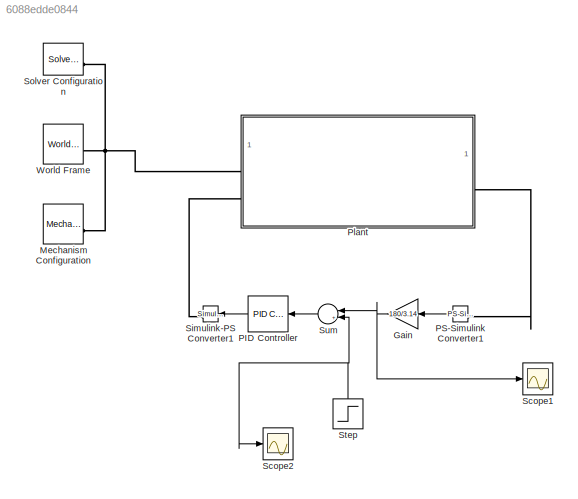
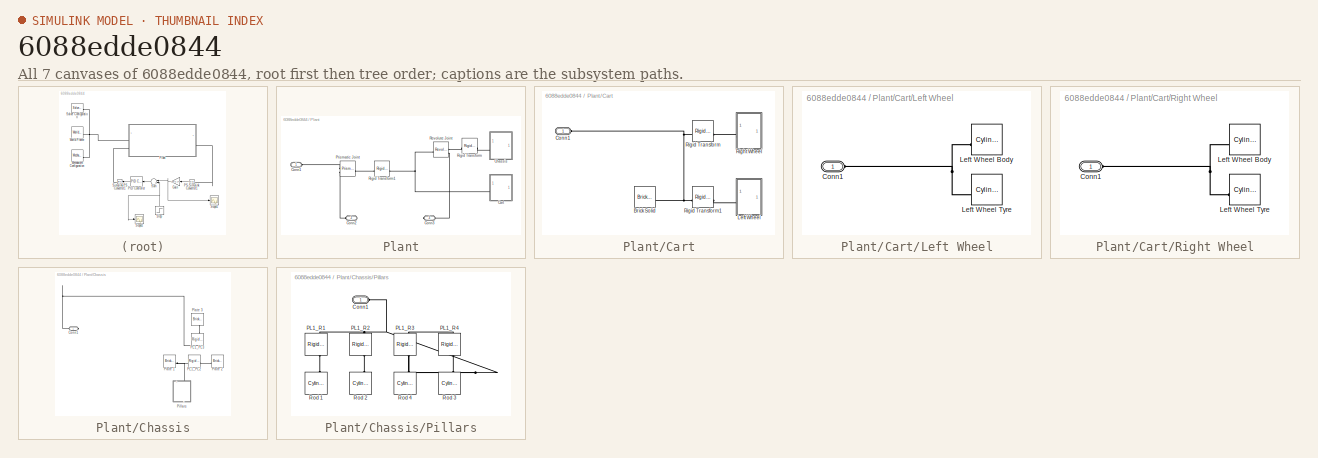
[diagram: thumbnail index - all 7 canvases of the model, root first then tree order]
MODEL slx_6088edde0844
KIND model
CONFIG AbsTol = 1e-3
CONFIG EnableMultiTasking = on
CONFIG FixedStep = auto
CONFIG MaxStep = auto
CONFIG MinStep = auto
CONFIG RelTol = 1e-3
CONFIG SampleTimeConstraint = Unconstrained
CONFIG SolverName = VariableStepAuto
CONFIG StartTime = 0.0
CONFIG StopTime = 10.0
BLOCK [Gain] Gain
  Gain = 180/3.14
  NameLocation = top
BLOCK [Reference] Mechanism Configuration  REF=sm_lib/Utilities/Mechanism
Configuration
  SourceBlock = sm_lib/Utilities/Mechanism\nConfiguration
  SourceType = Mechanism\nConfiguration
BLOCK [Reference] PID Controller  REF=slpidlib/PID Controller
  LibrarySourceBlock = simulink/Continuous/PID Controller
  NameLocation = top
  SourceBlock = slpidlib/PID Controller
  SourceType = PID 1dof
BLOCK [Reference] PS-Simulink Converter1  REF=nesl_utility/PS-Simulink
Converter
  NameLocation = top
  SourceBlock = nesl_utility/PS-Simulink\nConverter
  SourceType = PS-Simulink\nConverter
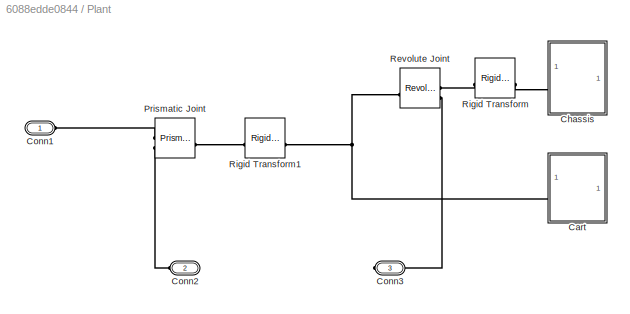
BLOCK [SubSystem] Plant
BLOCK [SubSystem] Plant/Cart
BLOCK [Reference] Plant/Cart/Brick Solid  REF=sm_lib/Body Elements/Brick Solid
  SourceBlock = sm_lib/Body Elements/Brick Solid
  SourceType = Brick Solid
BLOCK [PMIOPort] Plant/Cart/Conn1
  Side = Left
BLOCK [SubSystem] Plant/Cart/Left Wheel
BLOCK [PMIOPort] Plant/Cart/Left Wheel/Conn1
  Side = Left
BLOCK [Reference] Plant/Cart/Left Wheel/Left Wheel Body  REF=sm_lib/Body Elements/Cylindrical Solid
  NameLocation = top
  SourceBlock = sm_lib/Body Elements/Cylindrical Solid
  SourceType = Cylindrical Solid
BLOCK [Reference] Plant/Cart/Left Wheel/Left Wheel Tyre  REF=sm_lib/Body Elements/Cylindrical Solid
  NameLocation = top
  SourceBlock = sm_lib/Body Elements/Cylindrical Solid
  SourceType = Cylindrical Solid
BLOCK [SubSystem] Plant/Cart/Right Wheel
BLOCK [PMIOPort] Plant/Cart/Right Wheel/Conn1
  Side = Left
BLOCK [Reference] Plant/Cart/Right Wheel/Left Wheel Body  REF=sm_lib/Body Elements/Cylindrical Solid
  NameLocation = top
  SourceBlock = sm_lib/Body Elements/Cylindrical Solid
  SourceType = Cylindrical Solid
BLOCK [Reference] Plant/Cart/Right Wheel/Left Wheel Tyre  REF=sm_lib/Body Elements/Cylindrical Solid
  NameLocation = top
  SourceBlock = sm_lib/Body Elements/Cylindrical Solid
  SourceType = Cylindrical Solid
BLOCK [Reference] Plant/Cart/Rigid Transform  REF=sm_lib/Frames and
Transforms/Rigid
Transform
  SourceBlock = sm_lib/Frames and\nTransforms/Rigid\nTransform
  SourceType = Rigid\nTransform
BLOCK [Reference] Plant/Cart/Rigid Transform1  REF=sm_lib/Frames and
Transforms/Rigid
Transform
  SourceBlock = sm_lib/Frames and\nTransforms/Rigid\nTransform
  SourceType = Rigid\nTransform
BLOCK [SubSystem] Plant/Chassis
BLOCK [PMIOPort] Plant/Chassis/Conn1
  Side = Left
BLOCK [Reference] Plant/Chassis/PL1_PL2  REF=sm_lib/Frames and
Transforms/Rigid
Transform
  SourceBlock = sm_lib/Frames and\nTransforms/Rigid\nTransform
  SourceType = Rigid\nTransform
BLOCK [Reference] Plant/Chassis/PL1_PL3  REF=sm_lib/Frames and
Transforms/Rigid
Transform
  NameLocation = right
  SourceBlock = sm_lib/Frames and\nTransforms/Rigid\nTransform
  SourceType = Rigid\nTransform
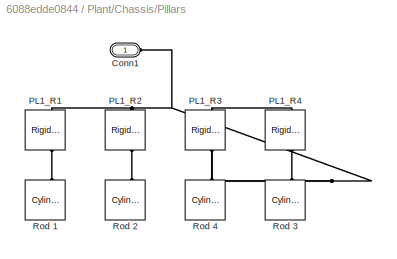
BLOCK [SubSystem] Plant/Chassis/Pillars
  NameLocation = left
BLOCK [PMIOPort] Plant/Chassis/Pillars/Conn1
  Side = Left
BLOCK [Reference] Plant/Chassis/Pillars/PL1_R1  REF=sm_lib/Frames and
Transforms/Rigid
Transform
  NameLocation = left
  SourceBlock = sm_lib/Frames and\nTransforms/Rigid\nTransform
  SourceType = Rigid\nTransform
BLOCK [Reference] Plant/Chassis/Pillars/PL1_R2  REF=sm_lib/Frames and
Transforms/Rigid
Transform
  NameLocation = left
  SourceBlock = sm_lib/Frames and\nTransforms/Rigid\nTransform
  SourceType = Rigid\nTransform
BLOCK [Reference] Plant/Chassis/Pillars/PL1_R3  REF=sm_lib/Frames and
Transforms/Rigid
Transform
  NameLocation = left
  SourceBlock = sm_lib/Frames and\nTransforms/Rigid\nTransform
  SourceType = Rigid\nTransform
BLOCK [Reference] Plant/Chassis/Pillars/PL1_R4  REF=sm_lib/Frames and
Transforms/Rigid
Transform
  NameLocation = left
  SourceBlock = sm_lib/Frames and\nTransforms/Rigid\nTransform
  SourceType = Rigid\nTransform
BLOCK [Reference] Plant/Chassis/Pillars/Rod 1  REF=sm_lib/Body Elements/Cylindrical Solid
  NameLocation = right
  SourceBlock = sm_lib/Body Elements/Cylindrical Solid
  SourceType = Cylindrical Solid
BLOCK [Reference] Plant/Chassis/Pillars/Rod 2  REF=sm_lib/Body Elements/Cylindrical Solid
  NameLocation = right
  SourceBlock = sm_lib/Body Elements/Cylindrical Solid
  SourceType = Cylindrical Solid
BLOCK [Reference] Plant/Chassis/Pillars/Rod 3  REF=sm_lib/Body Elements/Cylindrical Solid
  NameLocation = right
  SourceBlock = sm_lib/Body Elements/Cylindrical Solid
  SourceType = Cylindrical Solid
BLOCK [Reference] Plant/Chassis/Pillars/Rod 4  REF=sm_lib/Body Elements/Cylindrical Solid
  NameLocation = right
  SourceBlock = sm_lib/Body Elements/Cylindrical Solid
  SourceType = Cylindrical Solid
BLOCK [Reference] Plant/Chassis/Plate 1  REF=sm_lib/Body Elements/Brick Solid
  NameLocation = left
  SourceBlock = sm_lib/Body Elements/Brick Solid
  SourceType = Brick Solid
BLOCK [Reference] Plant/Chassis/Plate 2   REF=sm_lib/Body Elements/Brick Solid
  NameLocation = right
  SourceBlock = sm_lib/Body Elements/Brick Solid
  SourceType = Brick Solid
BLOCK [Reference] Plant/Chassis/Plate 3  REF=sm_lib/Body Elements/Brick Solid
  NameLocation = top
  SourceBlock = sm_lib/Body Elements/Brick Solid
  SourceType = Brick Solid
BLOCK [PMIOPort] Plant/Conn1
  Side = Left
BLOCK [PMIOPort] Plant/Conn2
  Port = 2
  Side = Left
BLOCK [PMIOPort] Plant/Conn3
  Port = 3
  Side = Right
BLOCK [Reference] Plant/Prismatic Joint  REF=sm_lib/Joints/Prismatic
Joint
  SourceBlock = sm_lib/Joints/Prismatic\nJoint
  SourceType = Prismatic\nJoint
BLOCK [Reference] Plant/Revolute Joint  REF=sm_lib/Joints/Revolute Joint
  SourceBlock = sm_lib/Joints/Revolute Joint
  SourceType = Revolute Joint
BLOCK [Reference] Plant/Rigid Transform  REF=sm_lib/Frames and
Transforms/Rigid
Transform
  SourceBlock = sm_lib/Frames and\nTransforms/Rigid\nTransform
  SourceType = Rigid\nTransform
BLOCK [Reference] Plant/Rigid Transform1  REF=sm_lib/Frames and
Transforms/Rigid
Transform
  SourceBlock = sm_lib/Frames and\nTransforms/Rigid\nTransform
  SourceType = Rigid\nTransform
BLOCK [Scope] Scope1
  Floating = off
  NumInputPorts = 1
  ScopeSpecificationString = Simulink.scopes.TimeScopeBlockCfg('CurrentConfiguration', extmgr.ConfigurationSet(extmgr.Configuration('Core','General UI',true),extmgr.Configuration('Core','Source UI',true),extmgr.Configuration('Sources','WiredSimulink',true,'DataLoggingVariableName','ScopeData1'),extmgr.Configuration('Visuals','Time Domain',true,'SerializedDisplays',{struct('MinYLimReal','-10.37189','MaxYLimReal','13.23926','YL...<+1487ch>
BLOCK [Scope] Scope2
  Floating = off
  NumInputPorts = 1
  ScopeSpecificationString = Simulink.scopes.TimeScopeBlockCfg('CurrentConfiguration', extmgr.ConfigurationSet(extmgr.Configuration('Core','General UI',true),extmgr.Configuration('Core','Source UI',true),extmgr.Configuration('Sources','WiredSimulink',true,'DataLoggingVariableName','ScopeData2'),extmgr.Configuration('Visuals','Time Domain',true,'SerializedDisplays',{struct('MinYLimReal','-1.25','MaxYLimReal','11.25','YLabelRea...<+1438ch>
BLOCK [Reference] Simulink-PS Converter1  REF=nesl_utility/Simulink-PS
Converter
  NameLocation = top
  SourceBlock = nesl_utility/Simulink-PS\nConverter
  SourceType = Simulink-PS\nConverter
BLOCK [Reference] Solver Configuration  REF=nesl_utility/Solver
Configuration
  SourceBlock = nesl_utility/Solver\nConfiguration
  SourceType = Solver\nConfiguration
BLOCK [Step] Step
  After = 0
  Before = 10
  NameLocation = right
  SampleTime = 0
  Time = 0.01
BLOCK [Sum] Sum
  Inputs = |+-|
  NameLocation = top
BLOCK [Reference] World Frame  REF=sm_lib/Frames and
Transforms/World Frame
  SourceBlock = sm_lib/Frames and\nTransforms/World Frame
  SourceType = World Frame
NET Gain:1 -> Scope1:1, Sum:1
LINE PID Controller:1 -> Simulink-PS Converter1:1
LINE PS-Simulink Converter1:1 -> Gain:1
NET Step:1 -> Scope2:1, Sum:2
LINE Sum:1 -> PID Controller:1
PNET net1: Mechanism Configuration:RConn1 -- Plant:LConn1 -- Solver Configuration:RConn1 -- World Frame:RConn1
PLINE PS-Simulink Converter1:LConn1 -- Plant:RConn1
PNET net2: Plant/Cart/Brick Solid:RConn1 -- Plant/Cart/Conn1:RConn1 -- Plant/Cart/Rigid Transform1:LConn1 -- Plant/Cart/Rigid Transform:LConn1
PNET net3: Plant/Cart/Left Wheel/Conn1:RConn1 -- Plant/Cart/Left Wheel/Left Wheel Body:RConn1 -- Plant/Cart/Left Wheel/Left Wheel Tyre:RConn1
PLINE Plant/Cart/Left Wheel:LConn1 -- Plant/Cart/Rigid Transform1:RConn1
PNET net4: Plant/Cart/Right Wheel/Conn1:RConn1 -- Plant/Cart/Right Wheel/Left Wheel Body:RConn1 -- Plant/Cart/Right Wheel/Left Wheel Tyre:RConn1
PLINE Plant/Cart/Right Wheel:LConn1 -- Plant/Cart/Rigid Transform:RConn1
PNET net5: Plant/Cart:LConn1 -- Plant/Revolute Joint:LConn1 -- Plant/Rigid Transform1:RConn1
PNET net6: Plant/Chassis/Conn1:RConn1 -- Plant/Chassis/PL1_PL2:LConn1 -- Plant/Chassis/PL1_PL3:LConn1 -- Plant/Chassis/Pillars:LConn1 -- Plant/Chassis/Plate 1:RConn1
PLINE Plant/Chassis/PL1_PL2:RConn1 -- Plant/Chassis/Plate 2 :RConn1
PLINE Plant/Chassis/PL1_PL3:RConn1 -- Plant/Chassis/Plate 3:RConn1
PNET net7: Plant/Chassis/Pillars/Conn1:RConn1 -- Plant/Chassis/Pillars/PL1_R1:LConn1 -- Plant/Chassis/Pillars/PL1_R2:LConn1 -- Plant/Chassis/Pillars/PL1_R3:LConn1 -- Plant/Chassis/Pillars/PL1_R4:LConn1
PLINE Plant/Chassis/Pillars/PL1_R1:RConn1 -- Plant/Chassis/Pillars/Rod 1:RConn1
PLINE Plant/Chassis/Pillars/PL1_R2:RConn1 -- Plant/Chassis/Pillars/Rod 2:RConn1
PLINE Plant/Chassis/Pillars/PL1_R3:RConn1 -- Plant/Chassis/Pillars/Rod 4:RConn1
PLINE Plant/Chassis/Pillars/PL1_R4:RConn1 -- Plant/Chassis/Pillars/Rod 3:RConn1
PLINE Plant/Chassis:LConn1 -- Plant/Rigid Transform:RConn1
PLINE Plant/Conn1:RConn1 -- Plant/Prismatic Joint:LConn1
PLINE Plant/Conn2:RConn1 -- Plant/Prismatic Joint:LConn2
PLINE Plant/Conn3:RConn1 -- Plant/Revolute Joint:RConn2
PLINE Plant/Prismatic Joint:RConn1 -- Plant/Rigid Transform1:LConn1
PLINE Plant/Revolute Joint:RConn1 -- Plant/Rigid Transform:LConn1
PLINE Plant:LConn2 -- Simulink-PS Converter1:RConn1
note: NET lines group one-source signal fan-out (src -> all destinations, sorted); 1:1 wires keep LINE; PNET lines group multi-terminal physical nets as a canonical sorted terminal list (undirected conserving connections); 2-terminal nets keep the pairwise PLINE form
